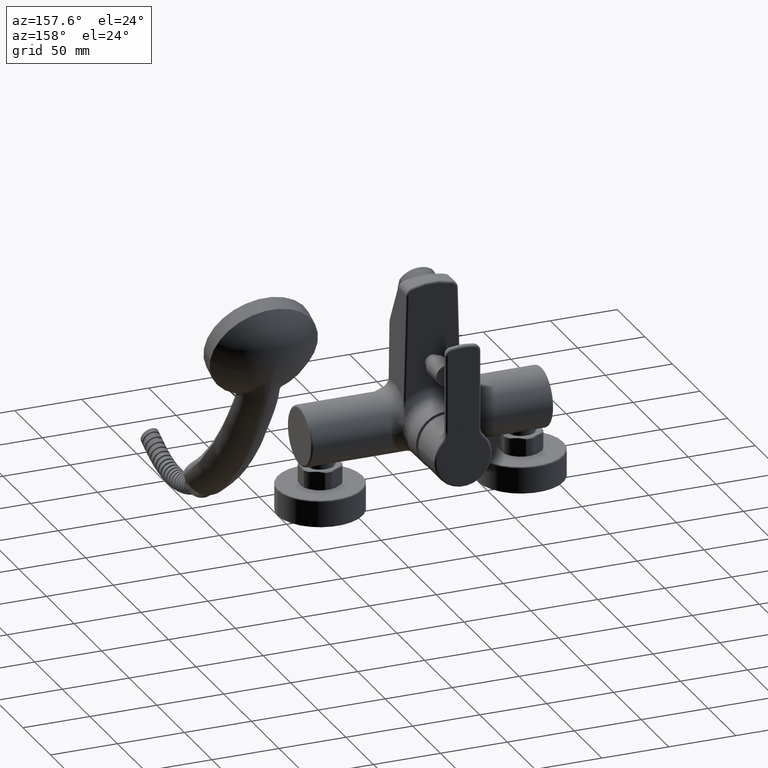
[diagram: clean part render]
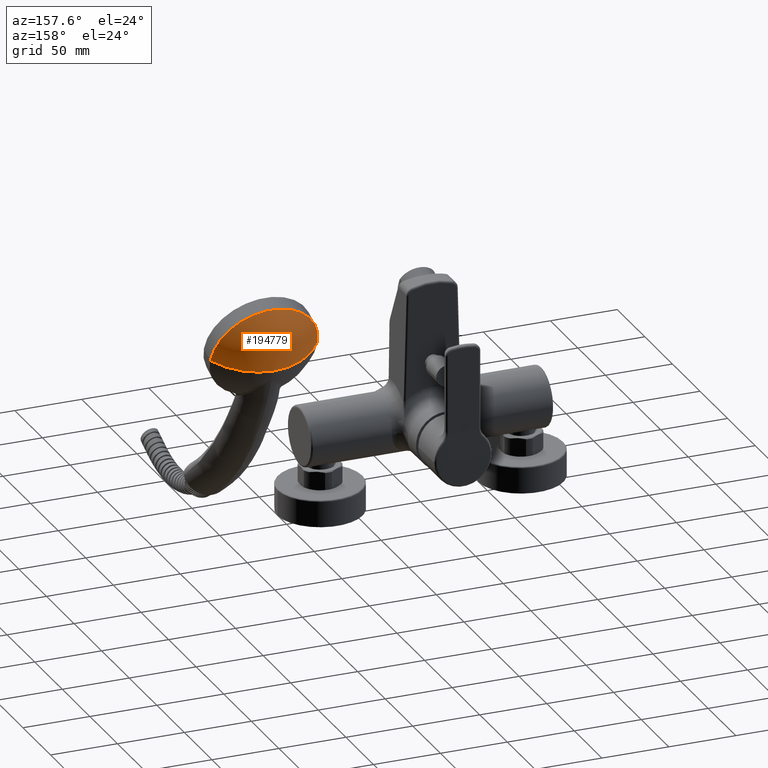
[diagram: same view with one face highlighted and labeled with its STEP entity id]
A machine part, auxiliary view. The second image highlights one B-rep face of the part: STEP entity #194779.
In plain terms, the highlighted spherical surface has radius 50.5377 mm.
Its self-contained STEP definition (entity closure, byte-faithful):
#184381=CARTESIAN_POINT('',(2.000928367023E2,2.016692521056E2,
1.656478981711E2));
#184382=DIRECTION('',(-4.812404799745E-5,9.348695497636E-1,-3.549914401911E-1));
#184383=DIRECTION('',(-9.999999952265E-1,-1.480259150731E-5,9.658135895171E-5));
#184384=AXIS2_PLACEMENT_3D('',#184381,#184382,#184383);
#185721=CARTESIAN_POINT('',(2.000943235513E2,1.727853601871E2,
1.766157753397E2));
#185722=DIRECTION('',(8.503617828125E-5,3.549914431444E-1,9.348695460133E-1));
#185723=DIRECTION('',(-4.812404799739E-5,9.348695497636E-1,-3.549914401911E-1));
#185724=AXIS2_PLACEMENT_3D('',#185721,#185722,#185723);
#185794=CARTESIAN_POINT('',(2.000943235513E2,1.727853601871E2,
1.766157753397E2));
#185795=DIRECTION('',(-8.503617828113E-5,-3.549914431444E-1,
-9.348695460133E-1));
#185796=DIRECTION('',(-4.812404799739E-5,9.348695497636E-1,-3.549914401911E-1));
#185797=AXIS2_PLACEMENT_3D('',#185794,#185795,#185796);
#191271=CARTESIAN_POINT('',(1.600993163480E2,2.016686600979E2,
1.656517607997E2));
#191272=VERTEX_POINT('',#191271);
#191273=CARTESIAN_POINT('',(2.400863570567E2,2.016698441134E2,
1.656440355425E2));
#191274=VERTEX_POINT('',#191273);
#191389=CARTESIAN_POINT('',(2.000918914744E2,2.200314810385E2,
1.586753381004E2));
#191390=VERTEX_POINT('',#191389);
#194769=CARTESIAN_POINT('',(2.000943235513E2,1.727853601871E2,
1.766157753397E2));
#194770=DIRECTION('',(-4.812404799745E-5,9.348695497636E-1,-3.549914401911E-1));
#194771=DIRECTION('',(9.999999952265E-1,1.480259150732E-5,-9.658135895219E-5));
#194772=AXIS2_PLACEMENT_3D('',#194769,#194770,#194771);
#194773=SPHERICAL_SURFACE('',#194772,5.053766149871E1);
#194774=ORIENTED_EDGE('',*,*,#191493,.F.);
#194775=ORIENTED_EDGE('',*,*,#194755,.F.);
#194776=ORIENTED_EDGE('',*,*,#194753,.T.);
#194777=EDGE_LOOP('',(#194774,#194775,#194776));
#194778=FACE_OUTER_BOUND('',#194777,.F.);
#194779=ADVANCED_FACE('',(#194778),#194773,.T.);
#184385=CIRCLE('',#184384,3.999352054526E1);
#185725=CIRCLE('',#185724,5.053766149871E1);
#185798=CIRCLE('',#185797,5.053766149871E1);
#191493=EDGE_CURVE('',#191272,#191274,#184385,.T.);
#194753=EDGE_CURVE('',#191390,#191274,#185798,.T.);
#194755=EDGE_CURVE('',#191390,#191272,#185725,.T.);